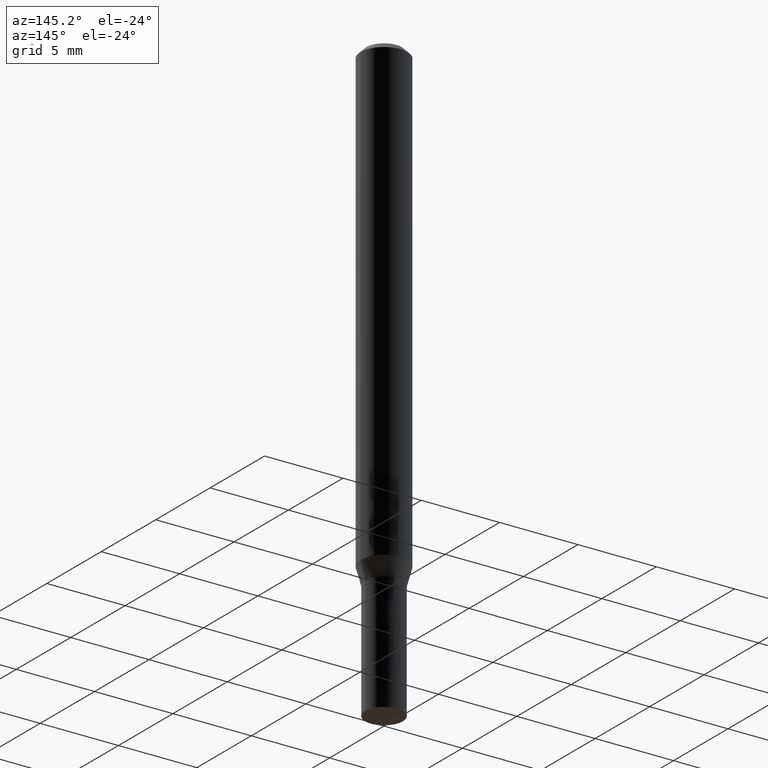
[diagram: clean part render]
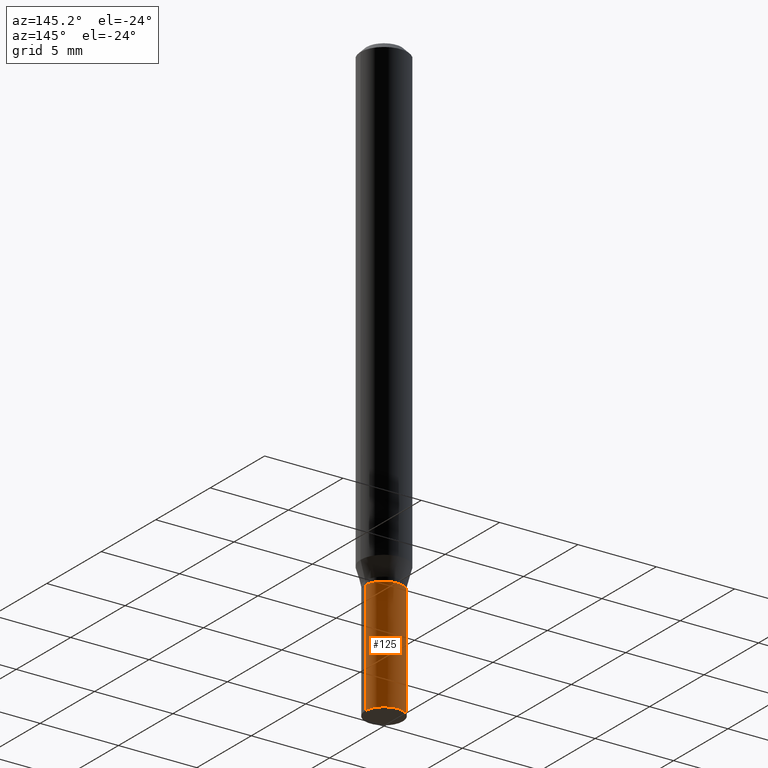
[diagram: same view with one face highlighted and labeled with its STEP entity id]
A machine part, auxiliary view. The second image highlights one B-rep face of the part: STEP entity #125.
In plain terms, the highlighted cylindrical surface (edge-blend (fillet) strip) has radius 1.2001 mm, axis along (-0, 0, 1).
Its self-contained STEP definition (entity closure, byte-faithful):
#37 = CARTESIAN_POINT ( 'NONE',  ( 0.04724999999999999339, -3.299449865206760567E-16, 2.303993526563579480E-30 ) ) ;
#40 = CIRCLE ( 'NONE', #298, 0.04724999999999999339 ) ;
#60 = ORIENTED_EDGE ( 'NONE', *, *, #435, .F. ) ;
#74 = DIRECTION ( 'NONE',  ( -2.445468806185136597E-29, 3.491481338843145583E-15, 1.000000000000000000 ) ) ;
#78 = DIRECTION ( 'NONE',  ( 1.000000000000000000, -6.982962677686266711E-15, 0.000000000000000000 ) ) ;
#103 = VECTOR ( 'NONE', #452, 39.37007874015748143 ) ;
#125 = ADVANCED_FACE ( 'NONE', ( #352 ), #420, .T. ) ;
#138 = VERTEX_POINT ( 'NONE', #387 ) ;
#141 = DIRECTION ( 'NONE',  ( 1.000000000000000000, -6.982962677686256455E-15, 0.000000000000000000 ) ) ;
#142 = CARTESIAN_POINT ( 'NONE',  ( 0.04724999999999999339, -4.577332035223362218E-15, -1.216500000000000137 ) ) ;
#143 = LINE ( 'NONE', #37, #312 ) ;
#144 = EDGE_CURVE ( 'NONE', #240, #338, #143, .T. ) ;
#147 = CARTESIAN_POINT ( 'NONE',  ( -0.04724999999999999339, -4.406573085837055149E-15, -1.216500000000000137 ) ) ;
#154 = ORIENTED_EDGE ( 'NONE', *, *, #210, .T. ) ;
#210 = EDGE_CURVE ( 'NONE', #138, #288, #273, .T. ) ;
#211 = DIRECTION ( 'NONE',  ( -2.445468806185136597E-29, 3.491481338843145583E-15, 1.000000000000000000 ) ) ;
#235 = CARTESIAN_POINT ( 'NONE',  ( -0.04724999999999999339, 3.357314426466472909E-16, -2.324196830145442815E-30 ) ) ;
#240 = VERTEX_POINT ( 'NONE', #277 ) ;
#273 = LINE ( 'NONE', #235, #103 ) ;
#277 = CARTESIAN_POINT ( 'NONE',  ( 0.04724999999999999339, -5.567166994785394973E-15, -1.500000000000000222 ) ) ;
#278 = AXIS2_PLACEMENT_3D ( 'NONE', #315, #426, #348 ) ;
#282 = EDGE_CURVE ( 'NONE', #240, #138, #336, .T. ) ;
#288 = VERTEX_POINT ( 'NONE', #147 ) ;
#298 = AXIS2_PLACEMENT_3D ( 'NONE', #386, #211, #141 ) ;
#299 = DIRECTION ( 'NONE',  ( -2.445468806185136877E-29, 3.491481338843145188E-15, 1.000000000000000000 ) ) ;
#312 = VECTOR ( 'NONE', #299, 39.37007874015748143 ) ;
#315 = CARTESIAN_POINT ( 'NONE',  ( 0.000000000000000000, 0.000000000000000000, 0.000000000000000000 ) ) ;
#336 = CIRCLE ( 'NONE', #425, 0.04724999999999999339 ) ;
#338 = VERTEX_POINT ( 'NONE', #142 ) ;
#348 = DIRECTION ( 'NONE',  ( 1.000000000000000000, -6.982962677686266711E-15, 4.876176775795936353E-29 ) ) ;
#352 = FACE_OUTER_BOUND ( 'NONE', #451, .T. ) ;
#386 = CARTESIAN_POINT ( 'NONE',  ( 2.974912802724219302E-29, -4.247387048702686999E-15, -1.216500000000000137 ) ) ;
#387 = CARTESIAN_POINT ( 'NONE',  ( -0.04724999999999999339, -4.406573085837055149E-15, -1.500000000000000222 ) ) ;
#392 = ORIENTED_EDGE ( 'NONE', *, *, #282, .T. ) ;
#408 = CARTESIAN_POINT ( 'NONE',  ( 3.668203209277704895E-29, -5.237222008264718177E-15, -1.500000000000000222 ) ) ;
#420 = CYLINDRICAL_SURFACE ( 'NONE', #278, 0.04724999999999999339 ) ;
#425 = AXIS2_PLACEMENT_3D ( 'NONE', #408, #74, #78 ) ;
#426 = DIRECTION ( 'NONE',  ( -2.445468806185136597E-29, 3.491481338843145583E-15, 1.000000000000000000 ) ) ;
#435 = EDGE_CURVE ( 'NONE', #338, #288, #40, .T. ) ;
#451 = EDGE_LOOP ( 'NONE', ( #392, #154, #60, #454 ) ) ;
#452 = DIRECTION ( 'NONE',  ( -2.445468806185136877E-29, 3.491481338843145188E-15, 1.000000000000000000 ) ) ;
#454 = ORIENTED_EDGE ( 'NONE', *, *, #144, .F. ) ;